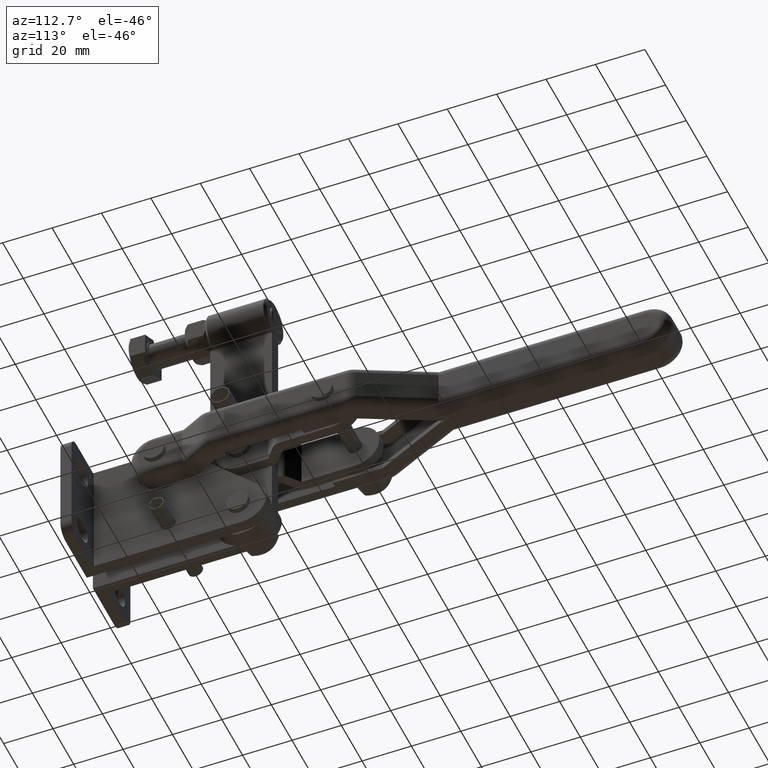
[diagram: clean part render]
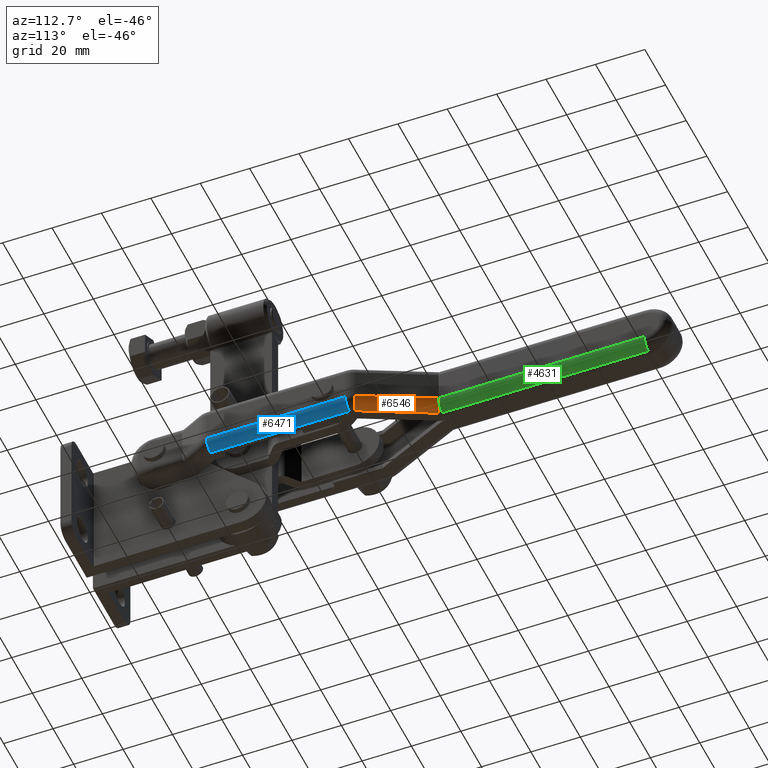
[diagram: same view with three faces highlighted in distinct colors, each labeled with its STEP entity id]
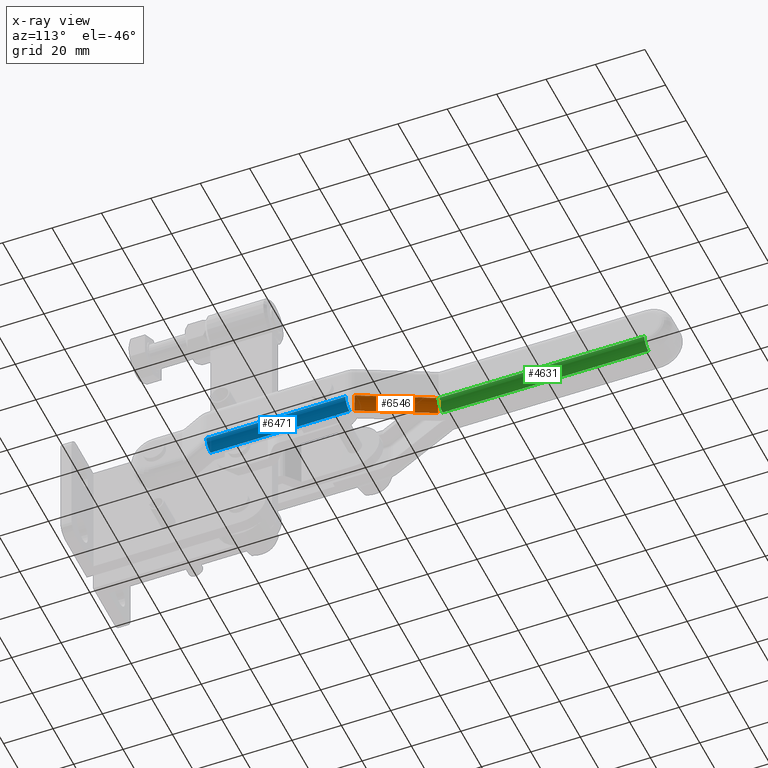
[diagram: x-ray of the same camera — body ghosted, the three highlighted faces saturated]
A machine part, auxiliary view with three faces highlighted in distinct colors.
The next image is the same camera in x-ray (body ghosted, the three faces saturated) — at least one of them is partly hidden behind the body in this view.
Their STEP definitions:

[orange] entity #6546 — the highlighted cylindrical surface (edge-blend (fillet) strip) has radius 4 mm, axis along (-0.4229, 0.9062, -0.0022).
#2 = DIRECTION ( 'NONE',  ( -0.4228854653311239200, 0.9061804408926815700, -0.002211731273037723300 ) ) ;
#9 = CARTESIAN_POINT ( 'NONE',  ( 21.24008343396166900, 116.1131361561204000, -15.85165371931650900 ) ) ;
#77 = CIRCLE ( 'NONE', #1096, 3.999999999999997300 ) ;
#81 = ORIENTED_EDGE ( 'NONE', *, *, #10445, .T. ) ;
#1096 = AXIS2_PLACEMENT_3D ( 'NONE', #6390, #18184, #8060 ) ;
#1573 = DIRECTION ( 'NONE',  ( 0.4228854653311227600, -0.9061804408926820200, 0.002211731273037722400 ) ) ;
#2642 = AXIS2_PLACEMENT_3D ( 'NONE', #6607, #13443, #9846 ) ;
#3005 = LINE ( 'NONE', #7975, #15911 ) ;
#4251 = EDGE_CURVE ( 'NONE', #7116, #13501, #3005, .T. ) ;
#4692 = ORIENTED_EDGE ( 'NONE', *, *, #9304, .T. ) ;
#6390 = CARTESIAN_POINT ( 'NONE',  ( 17.61535087398059200, 114.4215993331207100, -15.84752515427351200 ) ) ;
#6546 = ADVANCED_FACE ( 'NONE', ( #12178 ), #19045, .T. ) ;
#6607 = CARTESIAN_POINT ( 'NONE',  ( 4.375267440018929800, 142.7931221856471800, -15.91677205204899300 ) ) ;
#6733 = DIRECTION ( 'NONE',  ( 0.4228854653311239200, -0.9061804408926815700, 0.002211731273037723300 ) ) ;
#6797 = AXIS2_PLACEMENT_3D ( 'NONE', #11636, #1573, #13303 ) ;
#7116 = VERTEX_POINT ( 'NONE', #16737 ) ;
#7626 = EDGE_LOOP ( 'NONE', ( #11023, #20246, #81, #4692 ) ) ;
#7975 = CARTESIAN_POINT ( 'NONE',  ( 4.384649126019406900, 142.7632557881598200, -19.91671107077803900 ) ) ;
#8060 = DIRECTION ( 'NONE',  ( 0.9061831399952664500, 0.4228842057499157500, -0.001032141260751130000 ) ) ;
#9304 = EDGE_CURVE ( 'NONE', #17600, #15779, #17224, .T. ) ;
#9846 = DIRECTION ( 'NONE',  ( 0.9061831399952664500, 0.4228842057499159200, -0.001032141260751130400 ) ) ;
#10445 = EDGE_CURVE ( 'NONE', #13501, #17600, #15627, .T. ) ;
#11023 = ORIENTED_EDGE ( 'NONE', *, *, #21456, .F. ) ;
#11636 = CARTESIAN_POINT ( 'NONE',  ( 4.384649126019406000, 142.7730186326684500, -15.91672298493739700 ) ) ;
#12178 = FACE_OUTER_BOUND ( 'NONE', #7626, .T. ) ;
#12720 = VECTOR ( 'NONE', #6733, 1000.000000000000000 ) ;
#13303 = DIRECTION ( 'NONE',  ( 0.9061831399952664500, 0.4228842057499157500, -0.001032141260751130000 ) ) ;
#13443 = DIRECTION ( 'NONE',  ( -0.4228854653311239200, 0.9061804408926815700, -0.002211731273037723300 ) ) ;
#13501 = VERTEX_POINT ( 'NONE', #13523 ) ;
#13523 = CARTESIAN_POINT ( 'NONE',  ( 4.384649126019407800, 142.7632557881598200, -19.91671107077803900 ) ) ;
#15627 = CIRCLE ( 'NONE', #6797, 3.999999999999997300 ) ;
#15779 = VERTEX_POINT ( 'NONE', #20482 ) ;
#15911 = VECTOR ( 'NONE', #2, 1000.000000000000000 ) ;
#16737 = CARTESIAN_POINT ( 'NONE',  ( 17.61535087398059600, 114.4118364886120200, -19.84751324011415400 ) ) ;
#17224 = LINE ( 'NONE', #9, #12720 ) ;
#17600 = VERTEX_POINT ( 'NONE', #19459 ) ;
#18184 = DIRECTION ( 'NONE',  ( 0.4228854653311224200, -0.9061804408926823500, 0.002211731273037723300 ) ) ;
#19045 = CYLINDRICAL_SURFACE ( 'NONE', #2642, 3.999999999999995600 ) ;
#19459 = CARTESIAN_POINT ( 'NONE',  ( 8.009381686000463000, 144.4645554556681200, -15.92085154998039800 ) ) ;
#20246 = ORIENTED_EDGE ( 'NONE', *, *, #4251, .T. ) ;
#20482 = CARTESIAN_POINT ( 'NONE',  ( 21.24008343396166500, 116.1131361561204000, -15.85165371931650900 ) ) ;
#21456 = EDGE_CURVE ( 'NONE', #7116, #15779, #77, .T. ) ;

[blue] entity #6471 — the highlighted cylindrical surface (edge-blend (fillet) strip) has radius 4 mm, axis along (-0, 1, -0.0024).
#317 = CARTESIAN_POINT ( 'NONE',  ( 21.99999999999999600, 112.6877740895460500, -15.84329337510443600 ) ) ;
#1148 = EDGE_CURVE ( 'NONE', #9567, #14012, #18523, .T. ) ;
#1536 = CARTESIAN_POINT ( 'NONE',  ( 17.99999999999999600, 112.6780112450373700, -19.84328146094507900 ) ) ;
#2404 = VERTEX_POINT ( 'NONE', #317 ) ;
#2437 = CARTESIAN_POINT ( 'NONE',  ( 22.00000000000000700, 56.39707199956387700, -15.70590362293651200 ) ) ;
#2818 = CIRCLE ( 'NONE', #13825, 4.000000000000002700 ) ;
#3398 = EDGE_CURVE ( 'NONE', #9567, #13784, #2818, .T. ) ;
#3982 = AXIS2_PLACEMENT_3D ( 'NONE', #8874, #20678, #10588 ) ;
#4241 = CARTESIAN_POINT ( 'NONE',  ( 17.99999999999999600, 114.4847483648420200, -15.84767928327698200 ) ) ;
#4316 = CARTESIAN_POINT ( 'NONE',  ( 22.00000000000000700, 56.39707199956387700, -15.70590362293651200 ) ) ;
#4721 = ORIENTED_EDGE ( 'NONE', *, *, #19605, .T. ) ;
#6471 = ADVANCED_FACE ( 'NONE', ( #10346 ), #21665, .T. ) ;
#6678 = DIRECTION ( 'NONE',  ( 1.000000000000000000, 0.0000000000000000000, 0.0000000000000000000 ) ) ;
#7285 = DIRECTION ( 'NONE',  ( 2.775058632155479700E-016, -0.9999970214601610100, 0.002440711127167159500 ) ) ;
#8874 = CARTESIAN_POINT ( 'NONE',  ( 17.99999999999999600, 112.6877740895460500, -15.84329337510443600 ) ) ;
#8894 = ORIENTED_EDGE ( 'NONE', *, *, #8991, .T. ) ;
#8991 = EDGE_CURVE ( 'NONE', #2404, #13784, #19883, .T. ) ;
#9567 = VERTEX_POINT ( 'NONE', #19056 ) ;
#9944 = DIRECTION ( 'NONE',  ( -1.618576314837609200E-016, 0.9999970214601610100, -0.002440711127167159500 ) ) ;
#10346 = FACE_OUTER_BOUND ( 'NONE', #15125, .T. ) ;
#10588 = DIRECTION ( 'NONE',  ( 0.0000000000000000000, 0.002440711127166954000, 0.9999970214601610100 ) ) ;
#12498 = DIRECTION ( 'NONE',  ( 1.618576314837609200E-016, -0.9999970214601610100, 0.002440711127167159500 ) ) ;
#13314 = CARTESIAN_POINT ( 'NONE',  ( 17.99999999999999600, 112.6780112450373700, -19.84328146094507900 ) ) ;
#13473 = VECTOR ( 'NONE', #9944, 1000.000000000000000 ) ;
#13617 = CIRCLE ( 'NONE', #3982, 4.000000000000002700 ) ;
#13784 = VERTEX_POINT ( 'NONE', #4316 ) ;
#13825 = AXIS2_PLACEMENT_3D ( 'NONE', #19114, #7285, #17395 ) ;
#14012 = VERTEX_POINT ( 'NONE', #1536 ) ;
#15125 = EDGE_LOOP ( 'NONE', ( #17122, #15388, #4721, #8894 ) ) ;
#15388 = ORIENTED_EDGE ( 'NONE', *, *, #1148, .T. ) ;
#16619 = AXIS2_PLACEMENT_3D ( 'NONE', #4241, #19486, #6678 ) ;
#17122 = ORIENTED_EDGE ( 'NONE', *, *, #3398, .F. ) ;
#17395 = DIRECTION ( 'NONE',  ( 0.0000000000000000000, 0.002440711127166954000, 0.9999970214601610100 ) ) ;
#18523 = LINE ( 'NONE', #13314, #13473 ) ;
#19056 = CARTESIAN_POINT ( 'NONE',  ( 18.00000000000001400, 56.38730915505523500, -19.70589170877715900 ) ) ;
#19114 = CARTESIAN_POINT ( 'NONE',  ( 18.00000000000001400, 56.39707199956387700, -15.70590362293651200 ) ) ;
#19373 = VECTOR ( 'NONE', #12498, 1000.000000000000000 ) ;
#19486 = DIRECTION ( 'NONE',  ( -1.618576314837609200E-016, 0.9999970214601610100, -0.002440711127167159500 ) ) ;
#19605 = EDGE_CURVE ( 'NONE', #14012, #2404, #13617, .T. ) ;
#19883 = LINE ( 'NONE', #2437, #19373 ) ;
#20678 = DIRECTION ( 'NONE',  ( 2.775058632155479700E-016, -0.9999970214601610100, 0.002440711127167159500 ) ) ;
#21665 = CYLINDRICAL_SURFACE ( 'NONE', #16619, 4.000000000000000000 ) ;

[green] entity #4631 — the highlighted cylindrical surface (edge-blend (fillet) strip) has radius 4 mm, axis along (0, -1, 0.0024).
#2363 = ORIENTED_EDGE ( 'NONE', *, *, #6040, .T. ) ;
#2718 = CARTESIAN_POINT ( 'NONE',  ( 3.999999999999988000, 144.5068438762431500, -15.92095476410647400 ) ) ;
#3441 = VECTOR ( 'NONE', #8508, 1000.000000000000000 ) ;
#4394 = DIRECTION ( 'NONE',  ( 0.0000000000000000000, 0.002440711127170423400, 0.9999970214601610100 ) ) ;
#4631 = ADVANCED_FACE ( 'NONE', ( #18825 ), #8241, .T. ) ;
#5100 = DIRECTION ( 'NONE',  ( 2.775058632155479700E-016, -0.9999970214601610100, 0.002440711127167159500 ) ) ;
#5808 = CARTESIAN_POINT ( 'NONE',  ( 3.999999999999988900, 144.4846590086469000, -15.92090061709199700 ) ) ;
#6040 = EDGE_CURVE ( 'NONE', #21416, #13725, #13668, .T. ) ;
#6083 = VECTOR ( 'NONE', #9511, 1000.000000000000000 ) ;
#6207 = CARTESIAN_POINT ( 'NONE',  ( 4.000000000000015100, 44.45158729068585000, -19.67675997284198200 ) ) ;
#8241 = CYLINDRICAL_SURFACE ( 'NONE', #16427, 4.000000000000000000 ) ;
#8258 = EDGE_LOOP ( 'NONE', ( #15498, #9618, #2363, #19381 ) ) ;
#8508 = DIRECTION ( 'NONE',  ( 2.589546550455469000E-016, -0.9999970214601610100, 0.002440711127167159500 ) ) ;
#9511 = DIRECTION ( 'NONE',  ( -2.589546550455469000E-016, 0.9999970214601610100, -0.002440711127167159500 ) ) ;
#9618 = ORIENTED_EDGE ( 'NONE', *, *, #12689, .T. ) ;
#9771 = CIRCLE ( 'NONE', #18415, 4.000000000000002700 ) ;
#10875 = EDGE_CURVE ( 'NONE', #20359, #19284, #9771, .T. ) ;
#11859 = LINE ( 'NONE', #18631, #3441 ) ;
#12215 = DIRECTION ( 'NONE',  ( 2.589546550455469000E-016, -0.9999970214601610100, 0.002440711127167159500 ) ) ;
#12689 = EDGE_CURVE ( 'NONE', #20359, #21416, #19526, .T. ) ;
#13668 = CIRCLE ( 'NONE', #20546, 4.000000000000002700 ) ;
#13725 = VERTEX_POINT ( 'NONE', #14266 ) ;
#14266 = CARTESIAN_POINT ( 'NONE',  ( 7.999999999999972500, 227.8444107175658600, -16.12435829665265900 ) ) ;
#14488 = DIRECTION ( 'NONE',  ( 2.775058632155479700E-016, -0.9999970214601610100, 0.002440711127167159500 ) ) ;
#15202 = CARTESIAN_POINT ( 'NONE',  ( 3.999999999999967100, 227.8444107175658600, -16.12435829665265200 ) ) ;
#15498 = ORIENTED_EDGE ( 'NONE', *, *, #10875, .F. ) ;
#16065 = CARTESIAN_POINT ( 'NONE',  ( 7.999999999999988500, 144.5068438762431500, -15.92095476410647400 ) ) ;
#16244 = EDGE_CURVE ( 'NONE', #13725, #19284, #11859, .T. ) ;
#16393 = CARTESIAN_POINT ( 'NONE',  ( 3.999999999999988000, 144.4970810317344100, -19.92094284994711700 ) ) ;
#16427 = AXIS2_PLACEMENT_3D ( 'NONE', #5808, #12215, #18705 ) ;
#16887 = DIRECTION ( 'NONE',  ( 0.0000000000000000000, 0.002440711127170423400, 0.9999970214601610100 ) ) ;
#18415 = AXIS2_PLACEMENT_3D ( 'NONE', #2718, #14488, #4394 ) ;
#18631 = CARTESIAN_POINT ( 'NONE',  ( 7.999999999999988500, 144.4846590086469000, -15.92090061709199700 ) ) ;
#18705 = DIRECTION ( 'NONE',  ( -1.000000000000000000, 0.0000000000000000000, 0.0000000000000000000 ) ) ;
#18825 = FACE_OUTER_BOUND ( 'NONE', #8258, .T. ) ;
#19284 = VERTEX_POINT ( 'NONE', #16065 ) ;
#19381 = ORIENTED_EDGE ( 'NONE', *, *, #16244, .T. ) ;
#19526 = LINE ( 'NONE', #6207, #6083 ) ;
#19723 = CARTESIAN_POINT ( 'NONE',  ( 3.999999999999967100, 227.8346478730572400, -20.12434638249329700 ) ) ;
#20359 = VERTEX_POINT ( 'NONE', #16393 ) ;
#20546 = AXIS2_PLACEMENT_3D ( 'NONE', #15202, #5100, #16887 ) ;
#21416 = VERTEX_POINT ( 'NONE', #19723 ) ;